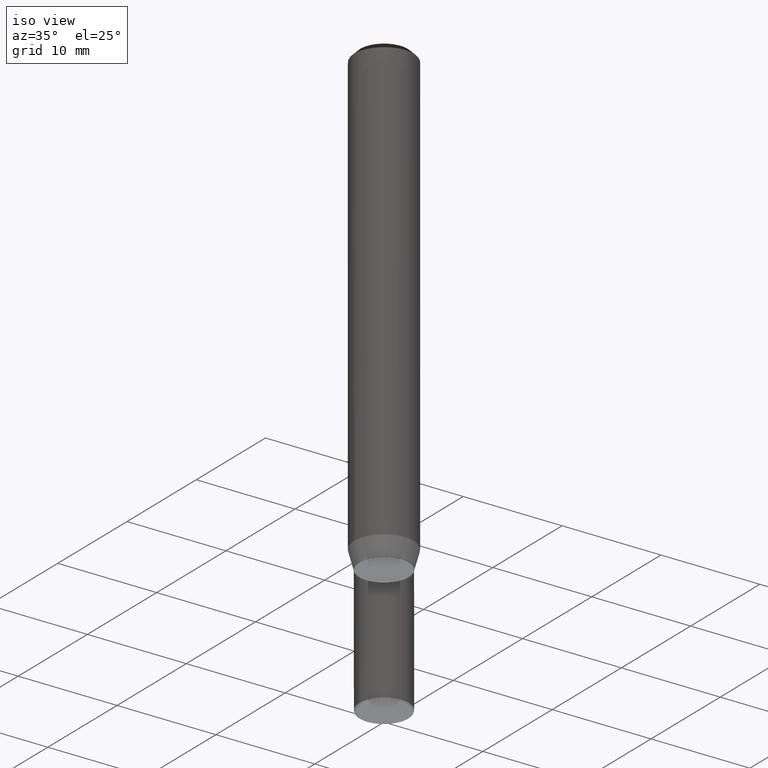
[diagram: clean part render]
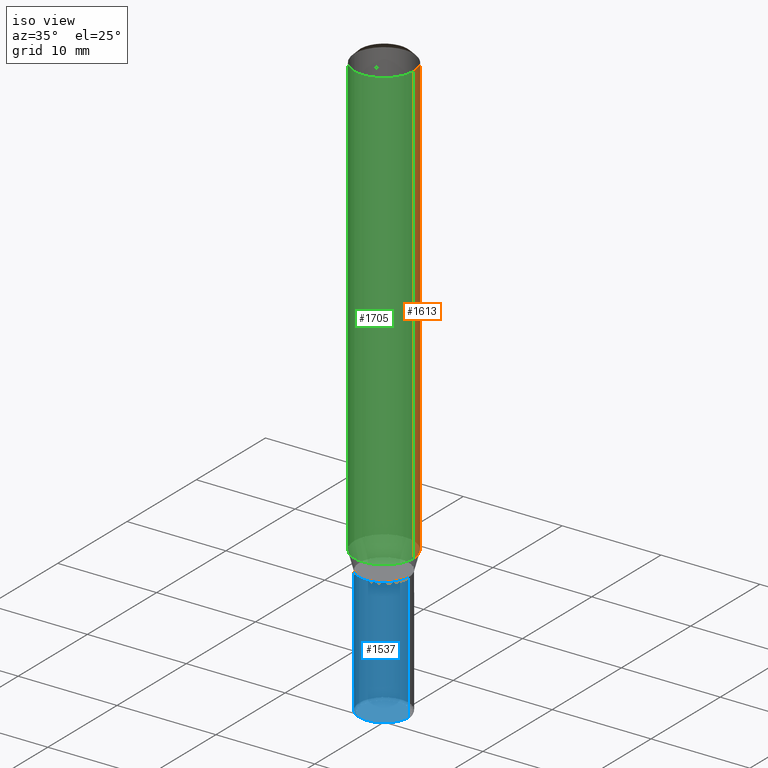
[diagram: same view with three faces highlighted in distinct colors, each labeled with its STEP entity id]
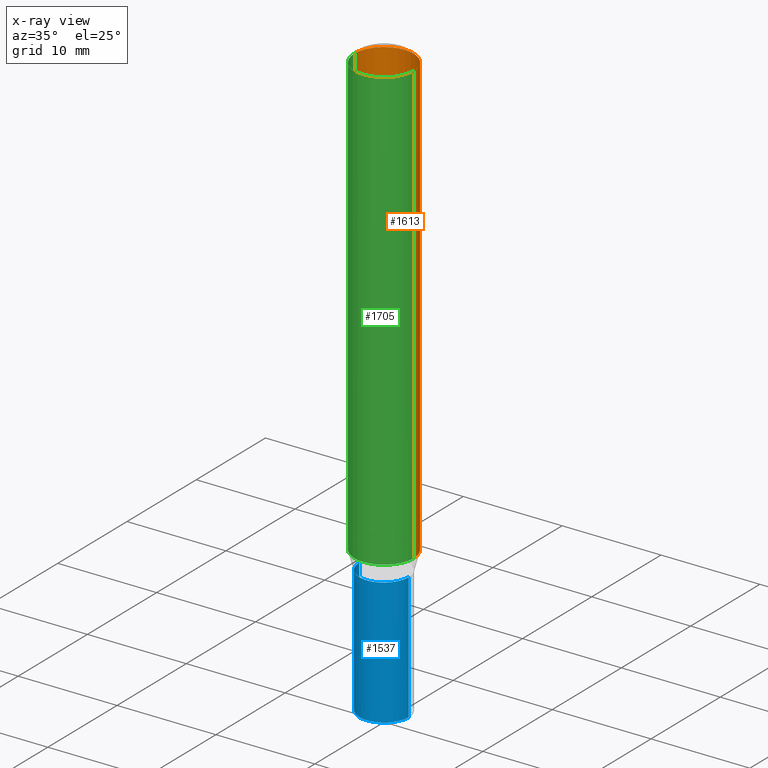
[diagram: x-ray of the same camera — body ghosted, the three highlighted faces saturated]
A machine part, iso view with three faces highlighted in distinct colors.
The next image is the same camera in x-ray (body ghosted, the three faces saturated) — at least one of them is partly hidden behind the body in this view.
Their STEP definitions:

[orange] entity #1613 — the highlighted face is a freeform B-spline surface patch.
#1376=CARTESIAN_POINT('',(3.0,0.0,0.0));
#1377=CARTESIAN_POINT('',(3.0,3.0,0.0));
#1378=CARTESIAN_POINT('',(0.0,3.0,0.0));
#1379=CARTESIAN_POINT('',(-3.0,3.0,0.0));
#1380=CARTESIAN_POINT('',(-3.0,0.0,0.0));
#1381=CARTESIAN_POINT('',(3.0,0.0,44.533974596216));
#1382=CARTESIAN_POINT('',(3.0,3.0,44.533974596216));
#1383=CARTESIAN_POINT('',(0.0,3.0,44.533974596216));
#1384=CARTESIAN_POINT('',(-3.0,3.0,44.533974596216));
#1385=CARTESIAN_POINT('',(-3.0,0.0,44.533974596216));
#1594=(
BOUNDED_SURFACE()
B_SPLINE_SURFACE(1,2,(
(#1376,#1377,#1378,#1379,#1380),
(#1381,#1382,#1383,#1384,#1385)
), .UNSPECIFIED.,.F.,.F.,.F.)
B_SPLINE_SURFACE_WITH_KNOTS((2,2),(3,2,3),(
0.0,1.0),(
0.0,0.5,1.0), .UNSPECIFIED.)
GEOMETRIC_REPRESENTATION_ITEM()
RATIONAL_B_SPLINE_SURFACE(((1.0,0.707106781187,1.0,0.707106781187,1.0),
(1.0,0.707106781187,1.0,0.707106781187,1.0)
))
REPRESENTATION_ITEM('')
SURFACE()
);
#1595=(
BOUNDED_CURVE()
B_SPLINE_CURVE(2,(#1381,#1382,#1383,#1384,#1385),.UNSPECIFIED.,.F.,.F.)
B_SPLINE_CURVE_WITH_KNOTS((3,2,3),
(0.0,0.5,1.0),.UNSPECIFIED.)
CURVE()
GEOMETRIC_REPRESENTATION_ITEM()
RATIONAL_B_SPLINE_CURVE((1.0,0.707106781187,1.0,0.707106781187,1.0))
REPRESENTATION_ITEM('')
);
#1596=(
BOUNDED_CURVE()
B_SPLINE_CURVE(1,(#1385,#1380),.UNSPECIFIED.,.F.,.F.)
B_SPLINE_CURVE_WITH_KNOTS((2,2),
(0.0,1.0),.UNSPECIFIED.)
CURVE()
GEOMETRIC_REPRESENTATION_ITEM()
RATIONAL_B_SPLINE_CURVE((1.0,1.0))
REPRESENTATION_ITEM('')
);
#1597=(
BOUNDED_CURVE()
B_SPLINE_CURVE(2,(#1380,#1379,#1378,#1377,#1376),.UNSPECIFIED.,.F.,.F.)
B_SPLINE_CURVE_WITH_KNOTS((3,2,3),
(0.0,0.5,1.0),.UNSPECIFIED.)
CURVE()
GEOMETRIC_REPRESENTATION_ITEM()
RATIONAL_B_SPLINE_CURVE((1.0,0.707106781187,1.0,0.707106781187,1.0))
REPRESENTATION_ITEM('')
);
#1598=(
BOUNDED_CURVE()
B_SPLINE_CURVE(1,(#1376,#1381),.UNSPECIFIED.,.F.,.F.)
B_SPLINE_CURVE_WITH_KNOTS((2,2),
(0.0,1.0),.UNSPECIFIED.)
CURVE()
GEOMETRIC_REPRESENTATION_ITEM()
RATIONAL_B_SPLINE_CURVE((1.0,1.0))
REPRESENTATION_ITEM('')
);
#1599=VERTEX_POINT('',#1376);
#1600=VERTEX_POINT('',#1380);
#1601=VERTEX_POINT('',#1381);
#1602=VERTEX_POINT('',#1385);
#1603=EDGE_CURVE('',#1601,#1602,#1595,.T.);
#1604=EDGE_CURVE('',#1602,#1600,#1596,.T.);
#1605=EDGE_CURVE('',#1600,#1599,#1597,.T.);
#1606=EDGE_CURVE('',#1599,#1601,#1598,.T.);
#1607=ORIENTED_EDGE('',*,*,#1603,.T.);
#1608=ORIENTED_EDGE('',*,*,#1604,.T.);
#1609=ORIENTED_EDGE('',*,*,#1605,.T.);
#1610=ORIENTED_EDGE('',*,*,#1606,.T.);
#1611=EDGE_LOOP('',(#1607,#1608,#1609,#1610));
#1612=FACE_OUTER_BOUND('',#1611,.T.);
#1613=ADVANCED_FACE('',(#1612),#1594,.T.);

[blue] entity #1537 — the highlighted face is a freeform B-spline surface patch.
#1347=CARTESIAN_POINT('',(2.5,0.0,-14.666025403784));
#1351=CARTESIAN_POINT('',(-2.5,0.0,-14.666025403784));
#1352=CARTESIAN_POINT('',(2.5,0.0,-1.866025403784));
#1356=CARTESIAN_POINT('',(-2.5,0.0,-1.866025403784));
#1370=CARTESIAN_POINT('',(-2.5,-2.5,-14.666025403784));
#1371=CARTESIAN_POINT('',(0.0,-2.5,-14.666025403784));
#1372=CARTESIAN_POINT('',(2.5,-2.5,-14.666025403784));
#1373=CARTESIAN_POINT('',(-2.5,-2.5,-1.866025403784));
#1374=CARTESIAN_POINT('',(0.0,-2.5,-1.866025403784));
#1375=CARTESIAN_POINT('',(2.5,-2.5,-1.866025403784));
#1518=(
BOUNDED_SURFACE()
B_SPLINE_SURFACE(1,2,(
(#1351,#1370,#1371,#1372,#1347),
(#1356,#1373,#1374,#1375,#1352)
), .UNSPECIFIED.,.F.,.F.,.F.)
B_SPLINE_SURFACE_WITH_KNOTS((2,2),(3,2,3),(
0.0,1.0),(
0.0,0.5,1.0), .UNSPECIFIED.)
GEOMETRIC_REPRESENTATION_ITEM()
RATIONAL_B_SPLINE_SURFACE(((1.0,0.707106781187,1.0,0.707106781187,1.0),
(1.0,0.707106781187,1.0,0.707106781187,1.0)
))
REPRESENTATION_ITEM('')
SURFACE()
);
#1519=(
BOUNDED_CURVE()
B_SPLINE_CURVE(1,(#1356,#1351),.UNSPECIFIED.,.F.,.F.)
B_SPLINE_CURVE_WITH_KNOTS((2,2),
(0.0,1.0),.UNSPECIFIED.)
CURVE()
GEOMETRIC_REPRESENTATION_ITEM()
RATIONAL_B_SPLINE_CURVE((1.0,1.0))
REPRESENTATION_ITEM('')
);
#1520=(
BOUNDED_CURVE()
B_SPLINE_CURVE(2,(#1351,#1370,#1371,#1372,#1347),.UNSPECIFIED.,.F.,.F.)
B_SPLINE_CURVE_WITH_KNOTS((3,2,3),
(0.0,0.5,1.0),.UNSPECIFIED.)
CURVE()
GEOMETRIC_REPRESENTATION_ITEM()
RATIONAL_B_SPLINE_CURVE((1.0,0.707106781187,1.0,0.707106781187,1.0))
REPRESENTATION_ITEM('')
);
#1521=(
BOUNDED_CURVE()
B_SPLINE_CURVE(1,(#1347,#1352),.UNSPECIFIED.,.F.,.F.)
B_SPLINE_CURVE_WITH_KNOTS((2,2),
(0.0,1.0),.UNSPECIFIED.)
CURVE()
GEOMETRIC_REPRESENTATION_ITEM()
RATIONAL_B_SPLINE_CURVE((1.0,1.0))
REPRESENTATION_ITEM('')
);
#1522=(
BOUNDED_CURVE()
B_SPLINE_CURVE(2,(#1352,#1375,#1374,#1373,#1356),.UNSPECIFIED.,.F.,.F.)
B_SPLINE_CURVE_WITH_KNOTS((3,2,3),
(0.0,0.5,1.0),.UNSPECIFIED.)
CURVE()
GEOMETRIC_REPRESENTATION_ITEM()
RATIONAL_B_SPLINE_CURVE((1.0,0.707106781187,1.0,0.707106781187,1.0))
REPRESENTATION_ITEM('')
);
#1523=VERTEX_POINT('',#1347);
#1524=VERTEX_POINT('',#1351);
#1525=VERTEX_POINT('',#1352);
#1526=VERTEX_POINT('',#1356);
#1527=EDGE_CURVE('',#1526,#1524,#1519,.T.);
#1528=EDGE_CURVE('',#1524,#1523,#1520,.T.);
#1529=EDGE_CURVE('',#1523,#1525,#1521,.T.);
#1530=EDGE_CURVE('',#1525,#1526,#1522,.T.);
#1531=ORIENTED_EDGE('',*,*,#1527,.T.);
#1532=ORIENTED_EDGE('',*,*,#1528,.T.);
#1533=ORIENTED_EDGE('',*,*,#1529,.T.);
#1534=ORIENTED_EDGE('',*,*,#1530,.T.);
#1535=EDGE_LOOP('',(#1531,#1532,#1533,#1534));
#1536=FACE_OUTER_BOUND('',#1535,.T.);
#1537=ADVANCED_FACE('',(#1536),#1518,.T.);

[green] entity #1705 — the highlighted face is a freeform B-spline surface patch.
#1376=CARTESIAN_POINT('',(3.0,0.0,0.0));
#1380=CARTESIAN_POINT('',(-3.0,0.0,0.0));
#1381=CARTESIAN_POINT('',(3.0,0.0,44.533974596216));
#1385=CARTESIAN_POINT('',(-3.0,0.0,44.533974596216));
#1392=CARTESIAN_POINT('',(-3.0,-3.0,0.0));
#1393=CARTESIAN_POINT('',(0.0,-3.0,0.0));
#1394=CARTESIAN_POINT('',(3.0,-3.0,0.0));
#1395=CARTESIAN_POINT('',(-3.0,-3.0,44.533974596216));
#1396=CARTESIAN_POINT('',(0.0,-3.0,44.533974596216));
#1397=CARTESIAN_POINT('',(3.0,-3.0,44.533974596216));
#1686=(
BOUNDED_SURFACE()
B_SPLINE_SURFACE(1,2,(
(#1380,#1392,#1393,#1394,#1376),
(#1385,#1395,#1396,#1397,#1381)
), .UNSPECIFIED.,.F.,.F.,.F.)
B_SPLINE_SURFACE_WITH_KNOTS((2,2),(3,2,3),(
0.0,1.0),(
0.0,0.5,1.0), .UNSPECIFIED.)
GEOMETRIC_REPRESENTATION_ITEM()
RATIONAL_B_SPLINE_SURFACE(((1.0,0.707106781187,1.0,0.707106781187,1.0),
(1.0,0.707106781187,1.0,0.707106781187,1.0)
))
REPRESENTATION_ITEM('')
SURFACE()
);
#1687=(
BOUNDED_CURVE()
B_SPLINE_CURVE(1,(#1385,#1380),.UNSPECIFIED.,.F.,.F.)
B_SPLINE_CURVE_WITH_KNOTS((2,2),
(0.0,1.0),.UNSPECIFIED.)
CURVE()
GEOMETRIC_REPRESENTATION_ITEM()
RATIONAL_B_SPLINE_CURVE((1.0,1.0))
REPRESENTATION_ITEM('')
);
#1688=(
BOUNDED_CURVE()
B_SPLINE_CURVE(2,(#1380,#1392,#1393,#1394,#1376),.UNSPECIFIED.,.F.,.F.)
B_SPLINE_CURVE_WITH_KNOTS((3,2,3),
(0.0,0.5,1.0),.UNSPECIFIED.)
CURVE()
GEOMETRIC_REPRESENTATION_ITEM()
RATIONAL_B_SPLINE_CURVE((1.0,0.707106781187,1.0,0.707106781187,1.0))
REPRESENTATION_ITEM('')
);
#1689=(
BOUNDED_CURVE()
B_SPLINE_CURVE(1,(#1376,#1381),.UNSPECIFIED.,.F.,.F.)
B_SPLINE_CURVE_WITH_KNOTS((2,2),
(0.0,1.0),.UNSPECIFIED.)
CURVE()
GEOMETRIC_REPRESENTATION_ITEM()
RATIONAL_B_SPLINE_CURVE((1.0,1.0))
REPRESENTATION_ITEM('')
);
#1690=(
BOUNDED_CURVE()
B_SPLINE_CURVE(2,(#1381,#1397,#1396,#1395,#1385),.UNSPECIFIED.,.F.,.F.)
B_SPLINE_CURVE_WITH_KNOTS((3,2,3),
(0.0,0.5,1.0),.UNSPECIFIED.)
CURVE()
GEOMETRIC_REPRESENTATION_ITEM()
RATIONAL_B_SPLINE_CURVE((1.0,0.707106781187,1.0,0.707106781187,1.0))
REPRESENTATION_ITEM('')
);
#1691=VERTEX_POINT('',#1376);
#1692=VERTEX_POINT('',#1380);
#1693=VERTEX_POINT('',#1381);
#1694=VERTEX_POINT('',#1385);
#1695=EDGE_CURVE('',#1694,#1692,#1687,.T.);
#1696=EDGE_CURVE('',#1692,#1691,#1688,.T.);
#1697=EDGE_CURVE('',#1691,#1693,#1689,.T.);
#1698=EDGE_CURVE('',#1693,#1694,#1690,.T.);
#1699=ORIENTED_EDGE('',*,*,#1695,.T.);
#1700=ORIENTED_EDGE('',*,*,#1696,.T.);
#1701=ORIENTED_EDGE('',*,*,#1697,.T.);
#1702=ORIENTED_EDGE('',*,*,#1698,.T.);
#1703=EDGE_LOOP('',(#1699,#1700,#1701,#1702));
#1704=FACE_OUTER_BOUND('',#1703,.T.);
#1705=ADVANCED_FACE('',(#1704),#1686,.T.);